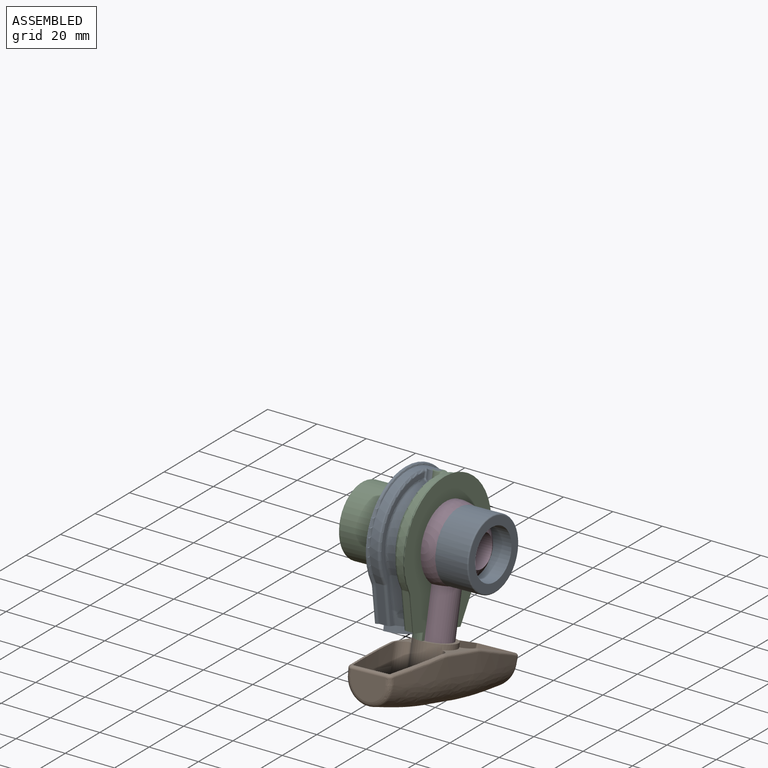
[diagram: assembled view]
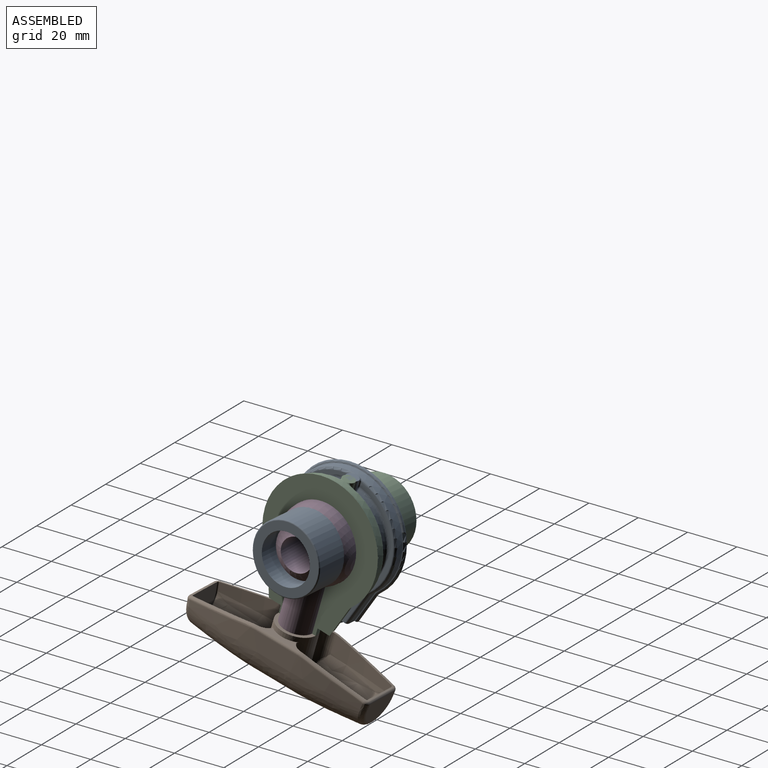
[diagram: assembled view, second angle]
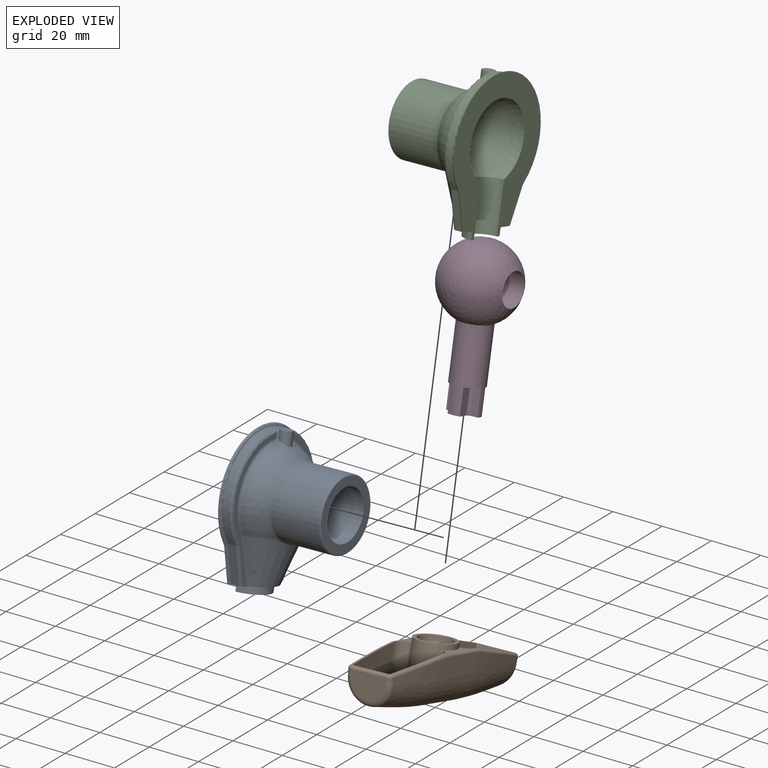
[diagram: exploded view]
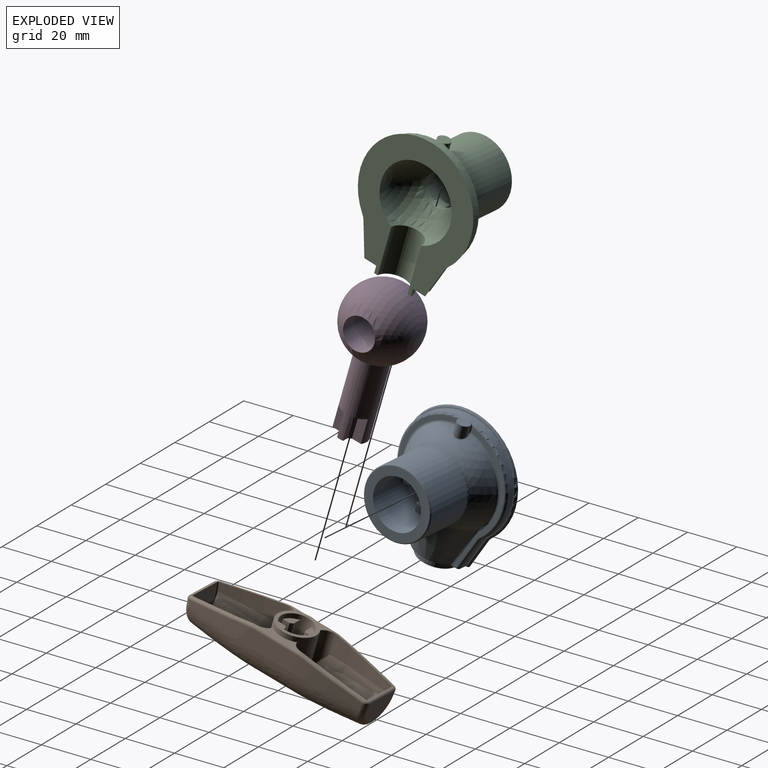
[diagram: exploded view, second angle]
ASSEMBLY  parts=4 mates=3
PART A: 151 faces, bbox 35.9x59.5x52.1 mm
  f0: plane 1.96x1.09mm, normal (-1,0,0), area 0.1mm2, adj f1,f148,f149,f150
  f1: cylinder r=1mm len=3mm, axis (1,0,0), area 1.2mm2, adj f0,f2,f148,f150
  f2: torus R=2mm, axis (1,0,0), area 0.9mm2, adj f1,f3,f146,f147
  f3: torus R=22mm, axis (1,0,0), area 158.3mm2, adj f2,f4,f142,f143,f144,f145,f147,f148
  f4: torus R=2mm, axis (1,0,0), area 0.9mm2, adj f3,f5,f141,f145
  f5: cylinder r=1mm len=3mm, axis (1,0,0), area 1.2mm2, adj f4,f6,f140,f148
  f6: plane 1.96x1.09mm, normal (-1,0,0), area 0.1mm2, adj f5,f7,f140,f148
  f7: torus R=6mm, axis (1,0,0), area 3.2mm2, adj f6,f8,f138,f139
  f8: plane 57x48mm, normal (1,0,0), area 1146.2mm2, adj f7,f9,f133,f134,f135,f136,f137,f138
  f9: sphere r=15mm, area 1204.3mm2, adj f8,f10,f133
  f10: cylinder r=6.5mm len=13mm, axis (-1,0,0), area 127.8mm2, adj f9,f11,f110,f111,f112,f113,f114,f115
  f11: cylinder r=0.5mm len=2mm, axis (-1,0,0), area 1.9mm2, adj f10,f12,f109,f132
  f12: sphere r=0.5mm, area 0.5mm2, adj f11,f13,f110
  f13: cylinder r=0.5mm len=2.58mm, axis (0,0,-1), area 1.9mm2, adj f12,f14,f108,f109
  f14: plane 4x2.79mm, normal (-1,0,0), area 10.1mm2, adj f13,f15,f107,f110
  f15: cylinder r=0.5mm len=2.58mm, axis (0,0,1), area 1.9mm2, adj f14,f16,f17,f106
  f16: sphere r=0.5mm, area 0.5mm2, adj f15,f110,f111
  f17: plane 2.31x2mm, normal (0,1,0), area 4.6mm2, adj f15,f18,f105,f111
  f18: cylinder r=0.5mm len=2.69mm, axis (0,0,-1), area 2mm2, adj f17,f19,f104,f112
  f19: sphere r=0.5mm, area 0.5mm2, adj f18,f20,f105
  f20: torus R=9.5mm, axis (-1,0,0), area 7.2mm2, adj f19,f21,f103,f104
  f21: cylinder r=10mm len=20mm, axis (-1,0,0), area 1089.6mm2, adj f20,f22,f61,f85,f86,f87,f88,f89
  f22: cylinder r=0.5mm len=2mm, axis (-1,0,0), area 1.9mm2, adj f21,f23,f102,f103
  f23: plane 2.31x2mm, normal (0,0,1), area 4.6mm2, adj f22,f24,f60,f115
  f24: cylinder r=0.5mm len=2.58mm, axis (0,-1,0), area 1.9mm2, adj f23,f25,f26,f102
  f25: sphere r=0.5mm, area 0.3mm2, adj f24,f115,f116
  f26: plane 4x2.79mm, normal (-1,0,0), area 10.1mm2, adj f24,f27,f101,f116
  f27: cylinder r=0.5mm len=2.58mm, axis (0,1,0), area 1.9mm2, adj f26,f28,f29,f100
  f28: sphere r=0.5mm, area 0.4mm2, adj f27,f116,f117
  f29: plane 2.31x2mm, normal (0,0,-1), area 4.6mm2, adj f27,f30,f99,f117
  f30: cylinder r=0.5mm len=2.69mm, axis (0,-1,0), area 2mm2, adj f29,f31,f32,f118
  f31: sphere r=0.5mm, area 0.7mm2, adj f30,f98,f99
  f32: plane 6.01x6.01mm, normal (-1,0,0), area 17mm2, adj f30,f33,f98,f119
  f33: cylinder r=0.5mm len=2.69mm, axis (0,0,-1), area 2mm2, adj f32,f34,f35,f120
  f34: sphere r=0.5mm, area 0.5mm2, adj f33,f97,f98
  f35: plane 2.31x2mm, normal (0,1,0), area 4.6mm2, adj f33,f36,f97,f121
  f36: cylinder r=0.5mm len=2.58mm, axis (0,0,1), area 1.9mm2, adj f35,f37,f38,f96
  f37: sphere r=0.5mm, area 0.5mm2, adj f36,f121,f122
  f38: plane 4x2.79mm, normal (-1,0,0), area 10.1mm2, adj f36,f39,f95,f122
  f39: cylinder r=0.5mm len=2.58mm, axis (0,0,-1), area 1.9mm2, adj f38,f40,f41,f94
  f40: sphere r=0.5mm, area 0.5mm2, adj f39,f122,f123
  f41: plane 2.31x2mm, normal (0,-1,0), area 4.6mm2, adj f39,f42,f93,f123
  f42: cylinder r=0.5mm len=2.69mm, axis (0,0,1), area 2mm2, adj f41,f43,f44,f124
  f43: sphere r=0.5mm, area 0.5mm2, adj f42,f92,f93
  f44: plane 6.01x6.01mm, normal (-1,0,0), area 17mm2, adj f42,f45,f92,f125
  f45: cylinder r=0.5mm len=2.69mm, axis (0,-1,0), area 2mm2, adj f44,f46,f47,f126
  f46: sphere r=0.5mm, area 0.6mm2, adj f45,f91,f92
  f47: plane 2.31x2mm, normal (0,0,-1), area 4.6mm2, adj f45,f48,f91,f127
  f48: cylinder r=0.5mm len=2.58mm, axis (0,1,0), area 1.9mm2, adj f47,f49,f50,f90
  f49: sphere r=0.5mm, area 0.8mm2, adj f48,f127,f128
  f50: plane 4x2.79mm, normal (-1,0,0), area 10.1mm2, adj f48,f51,f89,f128
  f51: cylinder r=0.5mm len=2.58mm, axis (0,-1,0), area 1.9mm2, adj f50,f52,f53,f54,f88
  f52: sphere r=0.5mm, area 0mm2, adj f51,f129
  f53: sphere r=0.5mm, area 0.2mm2, adj f51,f128,f129
  f54: plane 2.31x2mm, normal (0,0,1), area 4.6mm2, adj f51,f55,f87,f129
  f55: cylinder r=0.5mm len=2.69mm, axis (0,1,0), area 2mm2, adj f54,f56,f57,f130
  f56: sphere r=0.5mm, area 0.6mm2, adj f55,f86,f87
  f57: plane 6.01x6.01mm, normal (-1,0,0), area 17mm2, adj f55,f58,f86,f131
  f58: cylinder r=0.5mm len=2.69mm, axis (0,0,1), area 2mm2, adj f57,f59,f109,f132
  f59: sphere r=0.5mm, area 0.5mm2, adj f58,f85,f86
  f60: cylinder r=0.5mm len=2.69mm, axis (0,1,0), area 2mm2, adj f23,f103,f104,f114
  f61: plane 27x27mm, normal (-1,0,0), area 258.4mm2, adj f21,f62
  f62: torus R=13.5mm, axis (1,0,0), area 68.2mm2, adj f61,f63
  f63: cylinder r=14mm len=28mm, axis (1,0,0), area 1742mm2, adj f62,f64,f84
  f64: bspline ~17.52x3.73mm, area 19.6mm2, adj f63,f65,f82,f83
  f65: sphere r=1mm, area 0.1mm2, adj f64,f66,f84
  f66: torus R=16.9mm, axis (0,-1,0), area 3.5mm2, adj f65,f67,f81,f82
  f67: sphere r=1mm, area 0.1mm2, adj f66,f68,f69
  f68: bspline ~23.13x9.23mm, area 21.5mm2, adj f67,f82,f136,f145
  f69: torus R=20.12mm, axis (1,0,0), area 52.7mm2, adj f67,f70,f81,f145
  f70: bspline ~1.33x1.14mm, area 1mm2, adj f69,f71,f72,f79
  f71: cylinder r=0.5mm len=1.89mm, axis (0,1,0), area 2mm2, adj f70,f79,f144,f145
  f72: bspline ~5.86x4.64mm, area 6.9mm2, adj f70,f73,f79,f81
  f73: bspline ~1.33x1.14mm, area 1mm2, adj f72,f74,f75,f79
  f74: cylinder r=0.5mm len=1.89mm, axis (0,1,0), area 2mm2, adj f73,f79,f142,f147
  f75: torus R=20.12mm, axis (1,0,0), area 52.7mm2, adj f73,f76,f81,f147
  f76: sphere r=1mm, area 0.2mm2, adj f75,f77,f78
  f77: torus R=16.9mm, axis (0,-1,0), area 3.5mm2, adj f76,f81,f82,f83
  f78: bspline ~25.11x10.02mm, area 21.5mm2, adj f76,f82,f136,f147
  f79: cylinder r=2.5mm len=5.1mm, axis (0,1,0), area 46.9mm2, adj f70,f71,f72,f73,f74,f80,f142,f144
  f80: plane 5.14x5.14mm, normal (0,-1,0), area 19.6mm2, adj f79,f143
  f81: sphere r=20mm, area 755.1mm2, adj f66,f69,f72,f75,f77,f84
  f82: cone r=10mm half-angle=18.4deg, axis (0,-1,0), area 540.7mm2, adj f64,f66,f68,f77,f78,f136
  f83: sphere r=1mm, area 0.1mm2, adj f64,f77,f84
  f84: torus R=15mm, axis (1,0,0), area 55.8mm2, adj f63,f65,f81,f83
  f85: cylinder r=0.5mm len=2mm, axis (-1,0,0), area 1.9mm2, adj f21,f59,f108,f109
  f86: torus R=9.5mm, axis (-1,0,0), area 7.2mm2, adj f21,f56,f57,f59
  f87: cylinder r=0.5mm len=2mm, axis (-1,0,0), area 1.9mm2, adj f21,f54,f56,f88
  f88: bspline ~1.23x1.21mm, area 1mm2, adj f21,f51,f87,f89
  f89: torus R=9.5mm, axis (-1,0,0), area 3.3mm2, adj f21,f50,f88,f90
  f90: bspline ~1.29x1.2mm, area 1mm2, adj f21,f48,f89,f91
  f91: cylinder r=0.5mm len=2mm, axis (-1,0,0), area 1.9mm2, adj f21,f46,f47,f90
  f92: torus R=9.5mm, axis (-1,0,0), area 7.2mm2, adj f21,f43,f44,f46
  f93: cylinder r=0.5mm len=2mm, axis (-1,0,0), area 1.9mm2, adj f21,f41,f43,f94
  f94: bspline ~1.23x1.21mm, area 1mm2, adj f21,f39,f93,f95
  f95: torus R=9.5mm, axis (-1,0,0), area 3.3mm2, adj f21,f38,f94,f96
  f96: bspline ~1.29x1.2mm, area 1mm2, adj f21,f36,f95,f97
  f97: cylinder r=0.5mm len=2mm, axis (-1,0,0), area 1.9mm2, adj f21,f34,f35,f96
  f98: torus R=9.5mm, axis (-1,0,0), area 7.2mm2, adj f21,f31,f32,f34
  f99: cylinder r=0.5mm len=2mm, axis (-1,0,0), area 1.9mm2, adj f21,f29,f31,f100
  f100: bspline ~1.23x1.21mm, area 1mm2, adj f21,f27,f99,f101
  f101: torus R=9.5mm, axis (-1,0,0), area 3.3mm2, adj f21,f26,f100,f102
  f102: bspline ~1.29x1.2mm, area 1mm2, adj f21,f22,f24,f101
  f103: sphere r=0.5mm, area 0.3mm2, adj f20,f22,f60
  f104: plane 6.01x6.01mm, normal (-1,0,0), area 17mm2, adj f18,f20,f60,f113
  f105: cylinder r=0.5mm len=2mm, axis (-1,0,0), area 1.9mm2, adj f17,f19,f21,f106
  f106: bspline ~1.23x1.21mm, area 1mm2, adj f15,f21,f105,f107
  f107: torus R=9.5mm, axis (-1,0,0), area 3.3mm2, adj f14,f21,f106,f108
  f108: bspline ~1.29x1.2mm, area 1mm2, adj f13,f21,f85,f107
  f109: plane 2.31x2mm, normal (0,-1,0), area 4.6mm2, adj f11,f13,f58,f85
  f110: torus R=7mm, axis (-1,0,0), area 3mm2, adj f10,f12,f14,f16
  f111: cylinder r=0.5mm len=2mm, axis (-1,0,0), area 1.9mm2, adj f10,f16,f17,f112
  f112: bspline ~1.22x1.2mm, area 0.9mm2, adj f10,f18,f111,f113
  f113: torus R=7mm, axis (-1,0,0), area 3.6mm2, adj f10,f104,f112,f114
  f114: bspline ~1.27x1.21mm, area 0.9mm2, adj f10,f60,f113,f115
  f115: cylinder r=0.5mm len=2mm, axis (-1,0,0), area 1.9mm2, adj f10,f23,f25,f114
  f116: torus R=7mm, axis (-1,0,0), area 3mm2, adj f10,f25,f26,f28
  f117: cylinder r=0.5mm len=2mm, axis (-1,0,0), area 1.9mm2, adj f10,f28,f29,f118
  f118: bspline ~1.22x1.2mm, area 0.9mm2, adj f10,f30,f117,f119
  f119: torus R=7mm, axis (-1,0,0), area 3.6mm2, adj f10,f32,f118,f120
  f120: bspline ~1.27x1.21mm, area 0.9mm2, adj f10,f33,f119,f121
  f121: cylinder r=0.5mm len=2mm, axis (-1,0,0), area 1.9mm2, adj f10,f35,f37,f120
  f122: torus R=7mm, axis (-1,0,0), area 3mm2, adj f10,f37,f38,f40
  f123: cylinder r=0.5mm len=2mm, axis (-1,0,0), area 1.9mm2, adj f10,f40,f41,f124
  f124: bspline ~1.22x1.2mm, area 0.9mm2, adj f10,f42,f123,f125
  f125: torus R=7mm, axis (-1,0,0), area 3.6mm2, adj f10,f44,f124,f126
  f126: bspline ~1.27x1.21mm, area 0.9mm2, adj f10,f45,f125,f127
  f127: cylinder r=0.5mm len=2mm, axis (-1,0,0), area 1.9mm2, adj f10,f47,f49,f126
  f128: torus R=7mm, axis (-1,0,0), area 3mm2, adj f10,f49,f50,f53
  f129: cylinder r=0.5mm len=2mm, axis (-1,0,0), area 1.9mm2, adj f10,f52,f53,f54,f130
  f130: bspline ~1.22x1.2mm, area 0.9mm2, adj f10,f55,f129,f131
  f131: torus R=7mm, axis (-1,0,0), area 3.6mm2, adj f10,f57,f130,f132
  f132: bspline ~1.27x1.21mm, area 0.9mm2, adj f10,f11,f58,f131
  f133: cylinder r=6.5mm len=19.48mm, axis (0,1,0), area 397.8mm2, adj f8,f9,f134
  f134: plane 16x8mm, normal (0,1,0), area 34.2mm2, adj f8,f133,f137
  f135: cylinder r=1mm len=13.58mm, axis (0,-0.95,-0.32), area 21.7mm2, adj f8,f136,f149,f150
  f136: plane 26.46x10.14mm, normal (0,1,0), area 83.3mm2, adj f8,f68,f78,f82,f135,f137,f139,f140
  f137: cylinder r=8mm len=16mm, axis (0,-1,0), area 75.4mm2, adj f8,f134,f136
  f138: torus R=23mm, axis (1,0,0), area 168.5mm2, adj f7,f8,f148,f149
  f139: cylinder r=1mm len=13.58mm, axis (0,0.95,-0.32), area 21.7mm2, adj f7,f8,f136,f140
  f140: plane 14.21x4.74mm, normal (0,0.32,0.95), area 44.9mm2, adj f5,f6,f136,f139,f141
  f141: cylinder r=1mm len=14.84mm, axis (0,0.95,-0.32), area 23.8mm2, adj f4,f136,f140,f145
  f142: bspline ~1.53x1.14mm, area 1mm2, adj f3,f74,f79,f143
  f143: bspline ~4.54x1.2mm, area 2.1mm2, adj f3,f80,f142,f144
  f144: bspline ~1.52x1.14mm, area 1mm2, adj f3,f71,f79,f143
  f145: plane 51.85x19.4mm, normal (-1,0,0), area 108.1mm2, adj f3,f4,f68,f69,f71,f136,f141
  f146: cylinder r=1mm len=14.84mm, axis (0,-0.95,-0.32), area 23.8mm2, adj f2,f136,f147,f150
  f147: plane 51.85x19.4mm, normal (-1,0,0), area 108.1mm2, adj f2,f3,f74,f75,f78,f136,f146
  f148: cylinder r=23mm len=46mm, axis (1,0,0), area 318.3mm2, adj f0,f1,f3,f5,f6,f138
  f149: torus R=6mm, axis (1,0,0), area 3.2mm2, adj f0,f8,f135,f138
  f150: plane 14.21x4.74mm, normal (0,0.32,-0.95), area 44.9mm2, adj f0,f1,f135,f136,f146
PART B: 87 faces, bbox 87.2x36.2x26 mm
  f0: offset ~58.37x11.25mm, area 157.5mm2, adj f1,f17,f38,f41,f56
  f1: offset ~58.37x25.96mm, area 823mm2, adj f0,f33,f39,f80,f83,f84
  f2: offset ~58.37x11.25mm, area 157.5mm2, adj f16,f34,f37,f43,f54
  f3: plane 10x3.75mm, normal (1,0,0), area 37.5mm2, adj f12,f47,f48,f51
  f4: plane 10x2.88mm, normal (0,0,1), area 28.8mm2, adj f12,f47,f48,f51
  f5: plane 10x2.88mm, normal (0,0,-1), area 28.8mm2, adj f11,f47,f48,f52
  f6: plane 10x3.75mm, normal (1,0,0), area 37.5mm2, adj f11,f47,f48,f52
  f7: plane 10x3.75mm, normal (-1,0,0), area 37.5mm2, adj f14,f47,f48,f49
  f8: plane 10x2.88mm, normal (0,0,-1), area 28.8mm2, adj f14,f47,f48,f49
  f9: plane 10x2.88mm, normal (0,0,1), area 28.8mm2, adj f13,f47,f48,f50
  f10: plane 10x3.75mm, normal (-1,0,0), area 37.5mm2, adj f13,f47,f48,f50
  f11: plane 10x1mm, normal (0.71,0,-0.71), area 14.1mm2, adj f5,f6,f48,f52
  f12: plane 10x1mm, normal (0.71,0,0.71), area 14.1mm2, adj f3,f4,f48,f51
  f13: plane 10x1mm, normal (-0.71,0,0.71), area 14.1mm2, adj f9,f10,f48,f50
  f14: plane 10x1mm, normal (-0.71,0,-0.71), area 14.1mm2, adj f7,f8,f48,f49
  f15: plane 18.26x4.47mm, normal (0,-1,0), area 41.5mm2, adj f41,f42,f45,f53,f56,f60,f74,f86
  f16: plane 26.68x20.57mm, normal (-0.17,-0.98,0), area 35.9mm2, adj f2,f30,f32,f35,f37,f42,f43,f64
  f17: plane 26.68x20.57mm, normal (0.17,-0.98,0), area 35.9mm2, adj f0,f31,f33,f38,f40,f41,f44,f57
  f18: plane 14.2x9.76mm, normal (-0.99,0.12,0), area 117.6mm2, adj f24,f25,f26,f68
  f19: plane 14.21x9.76mm, normal (0.99,0.12,0), area 117.6mm2, adj f27,f28,f29,f61
  f20: plane 18.26x4.47mm, normal (0,-1,0), area 41.5mm2, adj f43,f44,f45,f54,f55,f69,f75,f81
  f21: bspline ~78x8.25mm, area 405.4mm2, adj f23,f24,f27,f57,f58,f60,f62,f64
  f22: bspline ~78x8.25mm, area 405.4mm2, adj f23,f26,f29,f65,f67,f69,f71,f72
  f23: bspline ~78x22.96mm, area 2425.3mm2, adj f21,f22,f25,f28
  f24: bspline ~6.43x2.51mm, area 7.5mm2, adj f18,f21,f25,f66
  f25: bspline ~18.17x9.35mm, area 72.4mm2, adj f18,f23,f24,f26
  f26: bspline ~6.43x2.51mm, area 7.5mm2, adj f18,f22,f25,f70
  f27: bspline ~6.43x2.51mm, area 7.5mm2, adj f19,f21,f28,f59
  f28: bspline ~18.18x9.49mm, area 72.4mm2, adj f19,f23,f27,f29
  f29: bspline ~6.43x2.51mm, area 7.5mm2, adj f19,f22,f28,f63
  f30: plane 14.21x10.78mm, normal (0.99,-0.12,0), area 132.1mm2, adj f16,f35,f36,f37
  f31: plane 14.21x10.78mm, normal (-0.99,-0.12,0), area 132.1mm2, adj f17,f38,f39,f40
  f32: offset ~58.37x11.25mm, area 157.5mm2, adj f16,f34,f35,f42,f53
  f33: offset ~58.37x11.25mm, area 157.5mm2, adj f1,f17,f40,f44,f55
  f34: offset ~58.37x25.96mm, area 823mm2, adj f2,f32,f36,f73,f76,f79
  f35: bspline ~6.94x1.28mm, area 2.6mm2, adj f16,f30,f32,f36
  f36: bspline ~15.2x8.28mm, area 16.2mm2, adj f30,f34,f35,f37
  f37: bspline ~6.94x1.28mm, area 2.6mm2, adj f2,f16,f30,f36
  f38: bspline ~6.94x1.28mm, area 2.6mm2, adj f0,f17,f31,f39
  f39: bspline ~15.2x8.84mm, area 16.2mm2, adj f1,f31,f38,f40
  f40: bspline ~6.94x1.28mm, area 2.6mm2, adj f17,f31,f33,f39
  f41: cylinder r=10mm len=1.74mm, axis (0,0,-1), area 0.9mm2, adj f0,f15,f17,f56,f58
  f42: cylinder r=10mm len=1.74mm, axis (0,0,-1), area 0.9mm2, adj f15,f16,f32,f53,f62
  f43: cylinder r=10mm len=1.74mm, axis (0,0,-1), area 0.9mm2, adj f2,f16,f20,f54,f71
  f44: cylinder r=10mm len=1.74mm, axis (0,0,-1), area 0.9mm2, adj f17,f20,f33,f55,f67
  f45: cylinder r=8mm len=19.02mm, axis (0,-1,0), area 517.3mm2, adj f15,f20,f46,f74,f75,f79,f81,f84
  f46: plane 16x16mm, normal (0,-1,0), area 68.3mm2, adj f45,f47
  f47: cylinder r=6.5mm len=13mm, axis (0,-1,0), area 234.6mm2, adj f3,f4,f5,f6,f7,f8,f9,f10
  f48: plane 13x13mm, normal (0,-1,0), area 85.2mm2, adj f3,f4,f5,f6,f7,f8,f9,f10
  f49: plane 4.75x3.88mm, normal (0,-1,0), area 11.9mm2, adj f7,f8,f14,f47
  f50: plane 4.75x3.88mm, normal (0,-1,0), area 11.9mm2, adj f9,f10,f13,f47
  f51: plane 4.75x3.88mm, normal (0,-1,0), area 11.9mm2, adj f3,f4,f12,f47
  f52: plane 4.75x3.88mm, normal (0,-1,0), area 11.9mm2, adj f5,f6,f11,f47
  f53: cylinder r=5mm len=14.11mm, axis (0,1,0), area 63mm2, adj f15,f32,f42,f73,f74
  f54: cylinder r=5mm len=14.11mm, axis (0,-1,0), area 63mm2, adj f2,f20,f43,f75,f76
  f55: cylinder r=5mm len=14.11mm, axis (0,-1,0), area 63mm2, adj f20,f33,f44,f80,f81
  f56: cylinder r=5mm len=14.11mm, axis (0,1,0), area 63mm2, adj f0,f15,f41,f83,f86
  f57: bspline ~36.87x7.44mm, area 40.9mm2, adj f17,f21,f58,f59
  f58: bspline ~6.15x1.7mm, area 2.6mm2, adj f21,f41,f57,f60
  f59: bspline ~2.3x2.12mm, area 3.6mm2, adj f17,f27,f57,f61
  f60: bspline ~29.42x1.18mm, area 28.7mm2, adj f15,f21,f58,f62
  f61: cylinder r=1mm len=14.13mm, axis (0,0,-1), area 21.4mm2, adj f17,f19,f59,f63
  f62: bspline ~6.15x1.7mm, area 2.6mm2, adj f21,f42,f60,f64
  f63: bspline ~2.44x1.97mm, area 3.6mm2, adj f17,f29,f61,f65
  f64: bspline ~36.87x7.44mm, area 40.9mm2, adj f16,f21,f62,f66
  f65: bspline ~36.87x7.44mm, area 40.9mm2, adj f17,f22,f63,f67
  f66: bspline ~2.44x1.97mm, area 3.6mm2, adj f16,f24,f64,f68
  f67: bspline ~6.15x1.7mm, area 2.6mm2, adj f22,f44,f65,f69
  f68: cylinder r=1mm len=14.13mm, axis (0,0,-1), area 21.4mm2, adj f16,f18,f66,f70
  f69: bspline ~29.42x1.18mm, area 28.7mm2, adj f20,f22,f67,f71
  f70: bspline ~2.3x2.12mm, area 3.6mm2, adj f16,f26,f68,f72
  f71: bspline ~6.15x1.7mm, area 2.6mm2, adj f22,f43,f69,f72
  f72: bspline ~36.87x7.44mm, area 40.9mm2, adj f16,f22,f70,f71
  f73: bspline ~7.12x4.83mm, area 3.4mm2, adj f34,f53,f77
  f74: cylinder r=1mm len=14.11mm, axis (0,-1,0), area 18mm2, adj f15,f45,f53,f77
  f75: cylinder r=1mm len=14.11mm, axis (0,-1,0), area 18mm2, adj f20,f45,f54,f78
  f76: bspline ~6.73x4.66mm, area 3.4mm2, adj f34,f54,f78
  f77: sphere r=1mm, area 1.1mm2, adj f73,f74,f79
  f78: sphere r=1mm, area 1.1mm2, adj f75,f76,f79
  f79: bspline ~15.92x5.38mm, area 28.8mm2, adj f34,f45,f77,f78
  f80: bspline ~7.12x4.83mm, area 3.4mm2, adj f1,f55,f82
  f81: cylinder r=1mm len=14.11mm, axis (0,-1,0), area 18mm2, adj f20,f45,f55,f82
  f82: sphere r=1mm, area 0.9mm2, adj f80,f81,f84
  f83: bspline ~6.73x4.66mm, area 3.4mm2, adj f1,f56,f85
  f84: bspline ~15.09x4.63mm, area 28.8mm2, adj f1,f45,f82,f85
  f85: sphere r=1mm, area 0.9mm2, adj f83,f84,f86
  f86: cylinder r=1mm len=14.11mm, axis (0,-1,0), area 18mm2, adj f15,f45,f56,f85
PART C: same geometry as A
PART D: 20 faces, bbox 30x60x30 mm
  f0: sphere r=15mm, area 2408.6mm2, adj f1,f19
  f1: cylinder r=6.5mm len=31.48mm, axis (0,-1,0), area 1030.3mm2, adj f0,f2,f3,f4,f5,f6,f7,f8
  f2: plane 13x13mm, normal (0,1,0), area 85.2mm2, adj f1,f3,f4,f6,f7,f9,f10,f12
  f3: plane 10x2.88mm, normal (-1,0,0), area 28.8mm2, adj f1,f2,f5,f15
  f4: plane 10x3.75mm, normal (0,0,-1), area 37.5mm2, adj f1,f2,f5,f15
  f5: plane 4.75x3.88mm, normal (0,1,0), area 11.9mm2, adj f1,f3,f4,f15
  f6: plane 10x2.88mm, normal (1,0,0), area 28.8mm2, adj f1,f2,f8,f17
  f7: plane 10x3.75mm, normal (0,0,1), area 37.5mm2, adj f1,f2,f8,f17
  f8: plane 4.75x3.88mm, normal (0,1,0), area 11.9mm2, adj f1,f6,f7,f17
  f9: plane 10x3.75mm, normal (0,0,-1), area 37.5mm2, adj f1,f2,f11,f16
  f10: plane 10x2.88mm, normal (1,0,0), area 28.8mm2, adj f1,f2,f11,f16
  f11: plane 4.75x3.88mm, normal (0,1,0), area 11.9mm2, adj f1,f9,f10,f16
  f12: plane 10x3.75mm, normal (0,0,1), area 37.5mm2, adj f1,f2,f14,f18
  f13: plane 10x2.88mm, normal (-1,0,0), area 28.8mm2, adj f1,f2,f14,f18
  f14: plane 4.75x3.88mm, normal (0,1,0), area 11.9mm2, adj f1,f12,f13,f18
  f15: plane 10x1mm, normal (-0.71,0,-0.71), area 14.1mm2, adj f2,f3,f4,f5
  f16: plane 10x1mm, normal (0.71,0,-0.71), area 14.1mm2, adj f2,f9,f10,f11
  f17: plane 10x1mm, normal (0.71,0,0.71), area 14.1mm2, adj f2,f6,f7,f8
  f18: plane 10x1mm, normal (-0.71,0,0.71), area 14.1mm2, adj f2,f12,f13,f14
  f19: cylinder r=6.5mm len=27.04mm, axis (0,0,1), area 1104.2mm2, adj f0
PLACE A rot(axis=(-0.03,-0.61,0.79),180deg) t=(-11.17,20.99,154.57)mm
PLACE B rot(axis=(-0.63,-0.48,0.61),130deg) t=(6.08,11.37,121.5)mm
PLACE C rot(axis=(-1,0,-0.04),105deg) t=(4.87,20.43,155.29)mm
PLACE D rot(axis=(-0.63,-0.48,0.61),130deg) t=(4.87,20.43,155.29)mm
MATE revolute B.f45 <-> C.f133  axis (-0.03,0.26,0.97) through (6.01,11.89,123.43)mm
MATE fastened D.f1 <-> B.f45  axis (0.03,-0.26,-0.97) through (6.42,8.79,111.85)mm
MATE slider A.f8 <-> C.f8  axis (-1,0.03,-0.04) through (-11.11,20.58,153.04)mm
